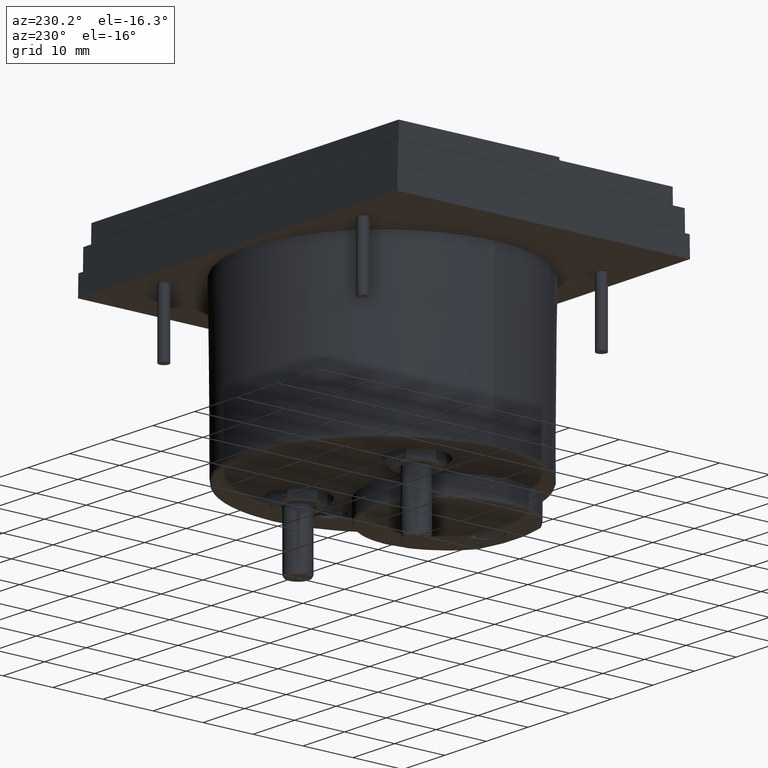
[diagram: clean part render]
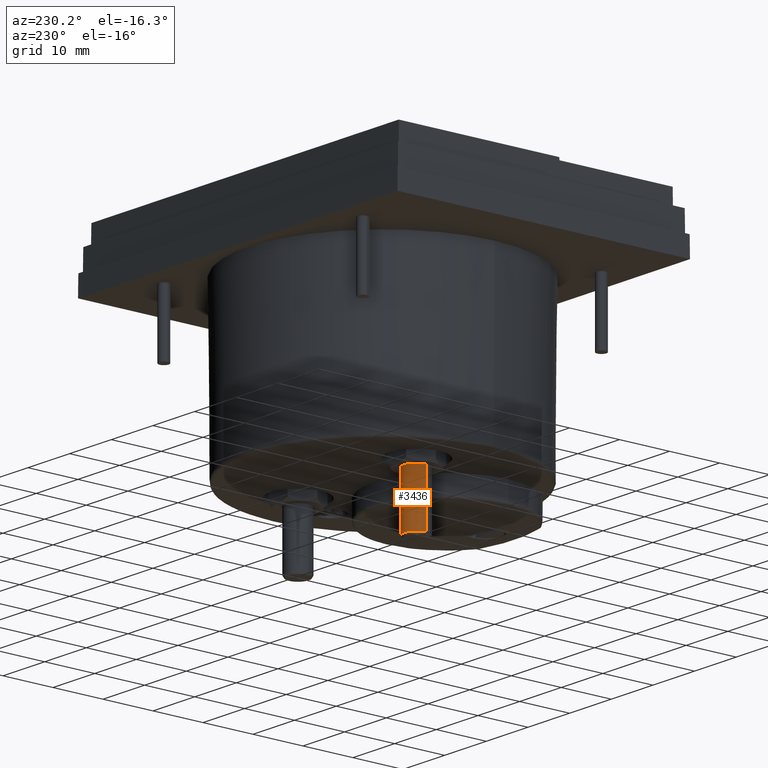
[diagram: same view with one face highlighted and labeled with its STEP entity id]
A machine part, auxiliary view. The second image highlights one B-rep face of the part: STEP entity #3436.
In plain terms, the highlighted cylindrical surface (edge-blend (fillet) strip) has radius 2.4 mm, axis along (0, 0, -1).
Its self-contained STEP definition (entity closure, byte-faithful):
#172 = AXIS2_PLACEMENT_3D ( 'NONE', #2717, #2252, #4103 ) ;
#437 = LINE ( 'NONE', #5856, #949 ) ;
#765 = CARTESIAN_POINT ( 'NONE',  ( -0.4655118110155019862, 1.015905511811027617, -1.621653543297027156 ) ) ;
#949 = VECTOR ( 'NONE', #4072, 39.37007874015748143 ) ;
#1085 = VERTEX_POINT ( 'NONE', #1426 ) ;
#1209 = EDGE_CURVE ( 'NONE', #1948, #2837, #3057, .T. ) ;
#1426 = CARTESIAN_POINT ( 'NONE',  ( -0.4655118110382783780, 1.015905511811027617, -2.055393200712905433 ) ) ;
#1441 = DIRECTION ( 'NONE',  ( 0.000000000000000000, 0.000000000000000000, -1.000000000000000000 ) ) ;
#1442 = ORIENTED_EDGE ( 'NONE', *, *, #2543, .F. ) ;
#1485 = EDGE_CURVE ( 'NONE', #1085, #2928, #3643, .T. ) ;
#1696 = AXIS2_PLACEMENT_3D ( 'NONE', #1965, #5213, #4785 ) ;
#1948 = VERTEX_POINT ( 'NONE', #5044 ) ;
#1965 = CARTESIAN_POINT ( 'NONE',  ( -0.5600000000000000533, 1.015905511811027617, -1.621653543297027156 ) ) ;
#2252 = DIRECTION ( 'NONE',  ( 0.000000000000000000, 0.000000000000000000, -1.000000000000000000 ) ) ;
#2543 = EDGE_CURVE ( 'NONE', #1948, #2928, #4224, .T. ) ;
#2717 = CARTESIAN_POINT ( 'NONE',  ( -0.5600000000000000533, 1.015905511811027617, -1.391338582677165592 ) ) ;
#2837 = VERTEX_POINT ( 'NONE', #765 ) ;
#2869 = VECTOR ( 'NONE', #1441, 39.37007874015748143 ) ;
#2928 = VERTEX_POINT ( 'NONE', #3640 ) ;
#3057 = CIRCLE ( 'NONE', #1696, 0.09448818898449808101 ) ;
#3094 = CARTESIAN_POINT ( 'NONE',  ( -0.5600000000000000533, 1.015905511811027617, -2.055393200712905433 ) ) ;
#3436 = ADVANCED_FACE ( 'NONE', ( #3606 ), #5016, .T. ) ;
#3554 = DIRECTION ( 'NONE',  ( -0.000000000000000000, -0.000000000000000000, 1.000000000000000000 ) ) ;
#3606 = FACE_OUTER_BOUND ( 'NONE', #4504, .T. ) ;
#3610 = DIRECTION ( 'NONE',  ( -1.000000000000000000, 0.000000000000000000, 0.000000000000000000 ) ) ;
#3640 = CARTESIAN_POINT ( 'NONE',  ( -0.6544881889617215620, 1.015905511811027617, -2.055393200712905433 ) ) ;
#3643 = CIRCLE ( 'NONE', #4022, 0.09448818897637792369 ) ;
#3776 = EDGE_CURVE ( 'NONE', #2837, #1085, #437, .T. ) ;
#4022 = AXIS2_PLACEMENT_3D ( 'NONE', #3094, #3554, #3610 ) ;
#4072 = DIRECTION ( 'NONE',  ( 0.000000000000000000, 0.000000000000000000, -1.000000000000000000 ) ) ;
#4103 = DIRECTION ( 'NONE',  ( -1.000000000000000000, 0.000000000000000000, 0.000000000000000000 ) ) ;
#4125 = ORIENTED_EDGE ( 'NONE', *, *, #1485, .T. ) ;
#4224 = LINE ( 'NONE', #4653, #2869 ) ;
#4403 = ORIENTED_EDGE ( 'NONE', *, *, #3776, .T. ) ;
#4504 = EDGE_LOOP ( 'NONE', ( #5645, #4403, #4125, #1442 ) ) ;
#4653 = CARTESIAN_POINT ( 'NONE',  ( -0.6544881889763779492, 1.015905511811027617, -1.391338582677165592 ) ) ;
#4785 = DIRECTION ( 'NONE',  ( -1.000000000000000000, 0.000000000000000000, 0.000000000000000000 ) ) ;
#5016 = CYLINDRICAL_SURFACE ( 'NONE', #172, 0.09448818897637792369 ) ;
#5044 = CARTESIAN_POINT ( 'NONE',  ( -0.6544881889844981204, 1.015905511811027617, -1.621653543297027156 ) ) ;
#5213 = DIRECTION ( 'NONE',  ( 0.000000000000000000, 0.000000000000000000, -1.000000000000000000 ) ) ;
#5645 = ORIENTED_EDGE ( 'NONE', *, *, #1209, .T. ) ;
#5856 = CARTESIAN_POINT ( 'NONE',  ( -0.4655118110236221018, 1.015905511811027617, -1.391338582677165592 ) ) ;